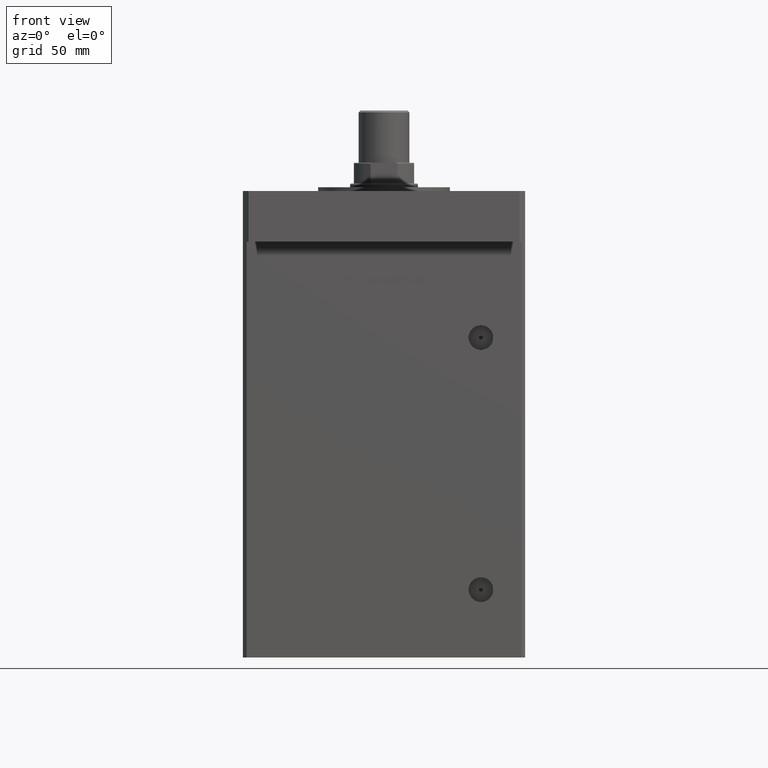
[diagram: clean part render]
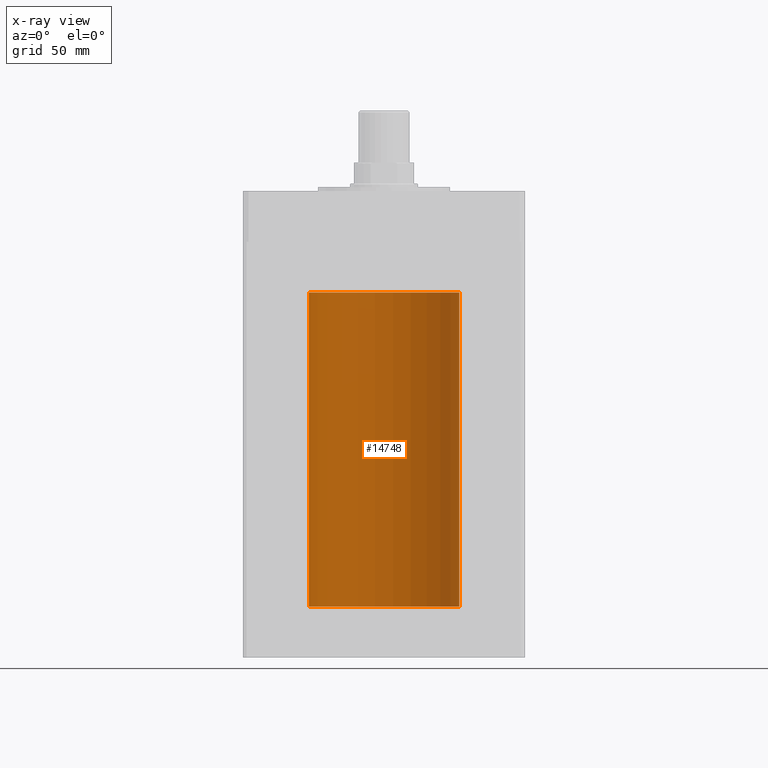
[diagram: x-ray — body ghosted, one internal face saturated and labeled with its STEP entity id]
A machine part, front view, then the same camera in x-ray: the body is ghosted and one INTERNAL B-rep face — a face not visible from any outside direction — is saturated and labeled: STEP entity #14748.
In plain terms, the highlighted cylindrical surface (partial cylindrical patch) has radius 40 mm, axis along (-0, -0, -1).
Its self-contained STEP definition (entity closure, byte-faithful):
#881 = CARTESIAN_POINT ( 'NONE',  ( -40.00000000000000000, 0.000000000000000000, 167.0000000000000000 ) ) ;
#1881 = ORIENTED_EDGE ( 'NONE', *, *, #51294, .F. ) ;
#5088 = DIRECTION ( 'NONE',  ( -0.000000000000000000, -0.000000000000000000, -1.000000000000000000 ) ) ;
#7597 = DIRECTION ( 'NONE',  ( -0.000000000000000000, 0.000000000000000000, 1.000000000000000000 ) ) ;
#9233 = DIRECTION ( 'NONE',  ( 1.000000000000000000, 0.000000000000000000, 0.000000000000000000 ) ) ;
#10090 = CYLINDRICAL_SURFACE ( 'NONE', #14597, 40.00000000000000000 ) ;
#13135 = LINE ( 'NONE', #38074, #36137 ) ;
#14597 = AXIS2_PLACEMENT_3D ( 'NONE', #39203, #18408, #52165 ) ;
#14748 = ADVANCED_FACE ( 'NONE', ( #44431 ), #10090, .F. ) ;
#14801 = EDGE_CURVE ( 'NONE', #40010, #48737, #24321, .T. ) ;
#16507 = ORIENTED_EDGE ( 'NONE', *, *, #14801, .T. ) ;
#17496 = LINE ( 'NONE', #881, #52184 ) ;
#18408 = DIRECTION ( 'NONE',  ( -0.000000000000000000, -0.000000000000000000, -1.000000000000000000 ) ) ;
#18514 = VERTEX_POINT ( 'NONE', #46276 ) ;
#21703 = CARTESIAN_POINT ( 'NONE',  ( 0.000000000000000000, 0.000000000000000000, 0.000000000000000000 ) ) ;
#22350 = CARTESIAN_POINT ( 'NONE',  ( -40.00000000000000000, 0.000000000000000000, 0.000000000000000000 ) ) ;
#24321 = CIRCLE ( 'NONE', #39355, 40.00000000000000000 ) ;
#26592 = DIRECTION ( 'NONE',  ( -0.000000000000000000, -0.000000000000000000, -1.000000000000000000 ) ) ;
#29303 = EDGE_CURVE ( 'NONE', #40010, #18514, #13135, .T. ) ;
#30281 = DIRECTION ( 'NONE',  ( -0.000000000000000000, 0.000000000000000000, 1.000000000000000000 ) ) ;
#36137 = VECTOR ( 'NONE', #5088, 1000.000000000000000 ) ;
#38074 = CARTESIAN_POINT ( 'NONE',  ( 40.00000000000000000, 4.898587196589412237E-15, 167.0000000000000000 ) ) ;
#39148 = CIRCLE ( 'NONE', #46213, 40.00000000000000000 ) ;
#39203 = CARTESIAN_POINT ( 'NONE',  ( 0.000000000000000000, 0.000000000000000000, 167.0000000000000000 ) ) ;
#39355 = AXIS2_PLACEMENT_3D ( 'NONE', #45797, #7597, #54359 ) ;
#40010 = VERTEX_POINT ( 'NONE', #47626 ) ;
#43849 = CARTESIAN_POINT ( 'NONE',  ( -40.00000000000000000, 0.000000000000000000, 167.0000000000000000 ) ) ;
#44276 = ORIENTED_EDGE ( 'NONE', *, *, #29303, .F. ) ;
#44431 = FACE_OUTER_BOUND ( 'NONE', #54668, .T. ) ;
#45417 = EDGE_CURVE ( 'NONE', #48737, #54083, #17496, .T. ) ;
#45797 = CARTESIAN_POINT ( 'NONE',  ( 0.000000000000000000, 0.000000000000000000, 167.0000000000000000 ) ) ;
#46213 = AXIS2_PLACEMENT_3D ( 'NONE', #21703, #30281, #9233 ) ;
#46276 = CARTESIAN_POINT ( 'NONE',  ( 40.00000000000000000, 4.898587196589412237E-15, 0.000000000000000000 ) ) ;
#47626 = CARTESIAN_POINT ( 'NONE',  ( 40.00000000000000000, 4.898587196589412237E-15, 167.0000000000000000 ) ) ;
#48737 = VERTEX_POINT ( 'NONE', #43849 ) ;
#49266 = ORIENTED_EDGE ( 'NONE', *, *, #45417, .T. ) ;
#51294 = EDGE_CURVE ( 'NONE', #18514, #54083, #39148, .T. ) ;
#52165 = DIRECTION ( 'NONE',  ( -1.000000000000000000, 0.000000000000000000, 0.000000000000000000 ) ) ;
#52184 = VECTOR ( 'NONE', #26592, 1000.000000000000000 ) ;
#54083 = VERTEX_POINT ( 'NONE', #22350 ) ;
#54359 = DIRECTION ( 'NONE',  ( 1.000000000000000000, 0.000000000000000000, 0.000000000000000000 ) ) ;
#54668 = EDGE_LOOP ( 'NONE', ( #44276, #16507, #49266, #1881 ) ) ;